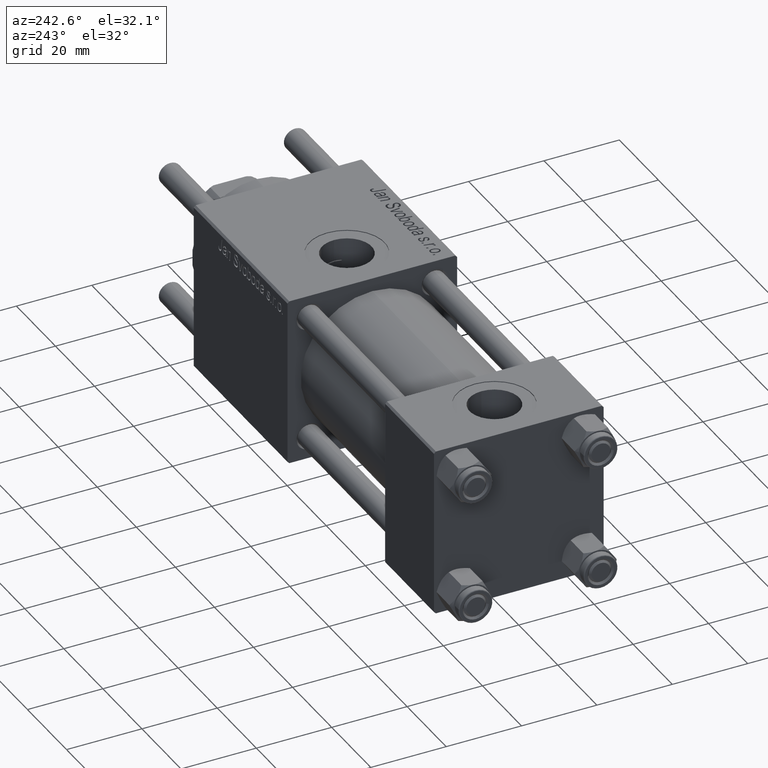
[diagram: clean part render]
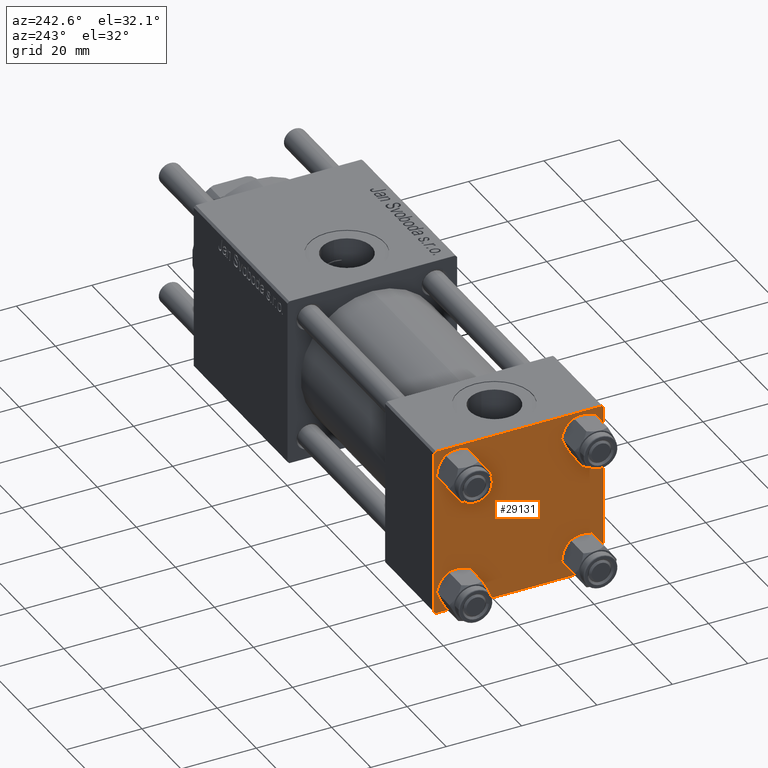
[diagram: same view with one face highlighted and labeled with its STEP entity id]
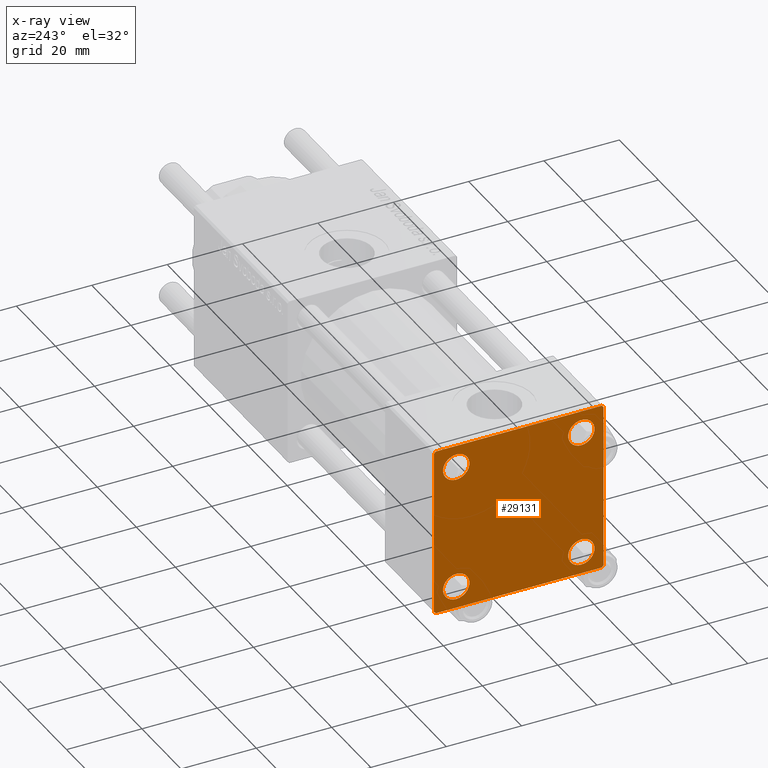
[diagram: x-ray of the same camera — body ghosted, the highlighted face saturated]
A machine part, auxiliary view. The second image highlights one B-rep face of the part: STEP entity #29131.
The next image is the same camera in x-ray: the body ghosted, the highlighted face saturated — about 0% of this face is hidden behind the body in this view.
In plain terms, the highlighted planar face has unit normal (-1, 0, 0).
Its self-contained STEP definition (entity closure, byte-faithful):
#793 = CIRCLE ( 'NONE', #39563, 3.499999999999996003 ) ;
#1063 = EDGE_CURVE ( 'NONE', #5606, #55957, #28718, .T. ) ;
#1360 = DIRECTION ( 'NONE',  ( 0.000000000000000000, 0.000000000000000000, 1.000000000000000000 ) ) ;
#1800 = EDGE_CURVE ( 'NONE', #24311, #23880, #51792, .T. ) ;
#1951 = DIRECTION ( 'NONE',  ( 1.000000000000000000, -0.000000000000000000, 0.000000000000000000 ) ) ;
#2198 = CARTESIAN_POINT ( 'NONE',  ( 0.000000000000000000, 22.25000000000014566, -22.24999999999984013 ) ) ;
#2492 = LINE ( 'NONE', #2198, #48736 ) ;
#2779 = CARTESIAN_POINT ( 'NONE',  ( 0.000000000000000000, -22.25000000000014566, -22.24999999999984013 ) ) ;
#5606 = VERTEX_POINT ( 'NONE', #34546 ) ;
#5712 = CIRCLE ( 'NONE', #42578, 3.499999999999996003 ) ;
#5910 = EDGE_CURVE ( 'NONE', #19520, #19886, #52178, .T. ) ;
#6015 = VERTEX_POINT ( 'NONE', #32355 ) ;
#6250 = CARTESIAN_POINT ( 'NONE',  ( 0.000000000000000000, 22.50000000000000000, 22.50000000000000355 ) ) ;
#6289 = FACE_BOUND ( 'NONE', #17034, .T. ) ;
#6531 = DIRECTION ( 'NONE',  ( 0.000000000000000000, 0.000000000000000000, 1.000000000000000000 ) ) ;
#6576 = CARTESIAN_POINT ( 'NONE',  ( 0.000000000000000000, 0.000000000000000000, 0.000000000000000000 ) ) ;
#7406 = DIRECTION ( 'NONE',  ( 0.000000000000000000, 0.000000000000000000, -1.000000000000000000 ) ) ;
#7966 = CIRCLE ( 'NONE', #24039, 3.499999999999996003 ) ;
#8859 = ORIENTED_EDGE ( 'NONE', *, *, #10737, .T. ) ;
#9222 = ORIENTED_EDGE ( 'NONE', *, *, #45767, .T. ) ;
#9439 = EDGE_CURVE ( 'NONE', #5606, #23880, #23898, .T. ) ;
#9713 = DIRECTION ( 'NONE',  ( 1.000000000000000000, -0.000000000000000000, 0.000000000000000000 ) ) ;
#10194 = EDGE_CURVE ( 'NONE', #57962, #21688, #18291, .T. ) ;
#10421 = DIRECTION ( 'NONE',  ( 0.000000000000000000, 0.000000000000000000, 1.000000000000000000 ) ) ;
#10737 = EDGE_CURVE ( 'NONE', #15828, #55957, #43326, .T. ) ;
#11308 = FACE_BOUND ( 'NONE', #28984, .T. ) ;
#12845 = ORIENTED_EDGE ( 'NONE', *, *, #1063, .F. ) ;
#13369 = DIRECTION ( 'NONE',  ( 0.000000000000000000, 0.7071067811865474617, -0.7071067811865474617 ) ) ;
#13751 = EDGE_LOOP ( 'NONE', ( #25037, #22432 ) ) ;
#15828 = VERTEX_POINT ( 'NONE', #41357 ) ;
#16048 = FACE_BOUND ( 'NONE', #41413, .T. ) ;
#16230 = VECTOR ( 'NONE', #29888, 1000.000000000000000 ) ;
#16279 = DIRECTION ( 'NONE',  ( 0.000000000000000000, 0.000000000000000000, 1.000000000000000000 ) ) ;
#16560 = DIRECTION ( 'NONE',  ( 0.000000000000000000, -1.000000000000000000, -7.709882115452476934E-17 ) ) ;
#16740 = EDGE_CURVE ( 'NONE', #31510, #30766, #2492, .T. ) ;
#17034 = EDGE_LOOP ( 'NONE', ( #27807, #30863 ) ) ;
#17839 = VECTOR ( 'NONE', #42835, 1000.000000000000000 ) ;
#18291 = CIRCLE ( 'NONE', #22100, 3.499999999999996003 ) ;
#18551 = VERTEX_POINT ( 'NONE', #52492 ) ;
#18576 = DIRECTION ( 'NONE',  ( -0.000000000000000000, 0.7071067811865525687, 0.7071067811865425767 ) ) ;
#19280 = CARTESIAN_POINT ( 'NONE',  ( 0.000000000000000000, 16.59999999999999787, -16.60000000000000497 ) ) ;
#19520 = VERTEX_POINT ( 'NONE', #40139 ) ;
#19567 = EDGE_LOOP ( 'NONE', ( #35598, #43225, #9222, #8859, #12845, #32644, #27799, #56409 ) ) ;
#19886 = VERTEX_POINT ( 'NONE', #26652 ) ;
#19896 = DIRECTION ( 'NONE',  ( 1.000000000000000000, -0.000000000000000000, 0.000000000000000000 ) ) ;
#20152 = VECTOR ( 'NONE', #18576, 999.9999999999998863 ) ;
#20940 = AXIS2_PLACEMENT_3D ( 'NONE', #33063, #1951, #1360 ) ;
#21473 = EDGE_CURVE ( 'NONE', #19886, #19520, #41965, .T. ) ;
#21688 = VERTEX_POINT ( 'NONE', #52622 ) ;
#22100 = AXIS2_PLACEMENT_3D ( 'NONE', #30458, #43178, #34027 ) ;
#22432 = ORIENTED_EDGE ( 'NONE', *, *, #57541, .T. ) ;
#22475 = EDGE_CURVE ( 'NONE', #52407, #18551, #7966, .T. ) ;
#22698 = VECTOR ( 'NONE', #7406, 1000.000000000000000 ) ;
#23717 = EDGE_CURVE ( 'NONE', #6015, #27017, #25980, .T. ) ;
#23880 = VERTEX_POINT ( 'NONE', #50276 ) ;
#23898 = LINE ( 'NONE', #33375, #20152 ) ;
#24039 = AXIS2_PLACEMENT_3D ( 'NONE', #19280, #47091, #6531 ) ;
#24311 = VERTEX_POINT ( 'NONE', #34508 ) ;
#24784 = CARTESIAN_POINT ( 'NONE',  ( 0.000000000000000000, 22.50000000000000000, -22.49999999999999645 ) ) ;
#24935 = DIRECTION ( 'NONE',  ( -0.000000000000000000, 0.000000000000000000, 1.000000000000000000 ) ) ;
#24990 = DIRECTION ( 'NONE',  ( 0.000000000000000000, -0.7071067811865426878, 0.7071067811865524577 ) ) ;
#25019 = AXIS2_PLACEMENT_3D ( 'NONE', #48536, #57408, #16279 ) ;
#25037 = ORIENTED_EDGE ( 'NONE', *, *, #23717, .T. ) ;
#25980 = CIRCLE ( 'NONE', #25019, 3.499999999999996003 ) ;
#26652 = CARTESIAN_POINT ( 'NONE',  ( 0.000000000000000000, -16.59999999999999076, -20.10000000000000497 ) ) ;
#27017 = VERTEX_POINT ( 'NONE', #34494 ) ;
#27799 = ORIENTED_EDGE ( 'NONE', *, *, #1800, .F. ) ;
#27807 = ORIENTED_EDGE ( 'NONE', *, *, #53293, .T. ) ;
#28461 = CARTESIAN_POINT ( 'NONE',  ( 0.000000000000000000, 22.50000000000000000, -21.99999999999996803 ) ) ;
#28718 = LINE ( 'NONE', #38484, #16230 ) ;
#28984 = EDGE_LOOP ( 'NONE', ( #41967, #32685 ) ) ;
#29131 = ADVANCED_FACE ( 'NONE', ( #33251, #11308, #6289, #16048, #42693 ), #42409, .T. ) ;
#29379 = DIRECTION ( 'NONE',  ( -1.000000000000000000, 0.000000000000000000, -0.000000000000000000 ) ) ;
#29555 = VECTOR ( 'NONE', #16560, 1000.000000000000000 ) ;
#29672 = VECTOR ( 'NONE', #24990, 1000.000000000000000 ) ;
#29888 = DIRECTION ( 'NONE',  ( 0.000000000000000000, 0.000000000000000000, -1.000000000000000000 ) ) ;
#30458 = CARTESIAN_POINT ( 'NONE',  ( 0.000000000000000000, 16.59999999999999787, 16.60000000000000497 ) ) ;
#30766 = VERTEX_POINT ( 'NONE', #39017 ) ;
#30863 = ORIENTED_EDGE ( 'NONE', *, *, #22475, .T. ) ;
#31460 = CARTESIAN_POINT ( 'NONE',  ( 0.000000000000000000, 22.24999999999999645, 22.24999999999999645 ) ) ;
#31510 = VERTEX_POINT ( 'NONE', #28461 ) ;
#31541 = DIRECTION ( 'NONE',  ( 0.000000000000000000, 0.000000000000000000, 1.000000000000000000 ) ) ;
#32355 = CARTESIAN_POINT ( 'NONE',  ( 0.000000000000000000, -16.59999999999999076, 20.10000000000000853 ) ) ;
#32417 = DIRECTION ( 'NONE',  ( 1.000000000000000000, -0.000000000000000000, 0.000000000000000000 ) ) ;
#32644 = ORIENTED_EDGE ( 'NONE', *, *, #9439, .T. ) ;
#32654 = CARTESIAN_POINT ( 'NONE',  ( 0.000000000000000000, -16.59999999999999076, 16.60000000000000853 ) ) ;
#32685 = ORIENTED_EDGE ( 'NONE', *, *, #21473, .T. ) ;
#33063 = CARTESIAN_POINT ( 'NONE',  ( 0.000000000000000000, 16.59999999999999787, -16.60000000000000497 ) ) ;
#33251 = FACE_BOUND ( 'NONE', #13751, .T. ) ;
#33375 = CARTESIAN_POINT ( 'NONE',  ( -0.000000000000000000, -22.24999999999984013, 22.25000000000015277 ) ) ;
#34027 = DIRECTION ( 'NONE',  ( 0.000000000000000000, 0.000000000000000000, 1.000000000000000000 ) ) ;
#34493 = AXIS2_PLACEMENT_3D ( 'NONE', #6576, #29379, #24935 ) ;
#34494 = CARTESIAN_POINT ( 'NONE',  ( 0.000000000000000000, -16.59999999999999076, 13.10000000000001030 ) ) ;
#34508 = CARTESIAN_POINT ( 'NONE',  ( 0.000000000000000000, 21.99999999999999289, 22.50000000000000355 ) ) ;
#34546 = CARTESIAN_POINT ( 'NONE',  ( 0.000000000000000000, -22.50000000000000000, 22.00000000000000000 ) ) ;
#35598 = ORIENTED_EDGE ( 'NONE', *, *, #49701, .T. ) ;
#37160 = CARTESIAN_POINT ( 'NONE',  ( 0.000000000000000000, 16.59999999999999787, 16.60000000000000497 ) ) ;
#37768 = DIRECTION ( 'NONE',  ( -0.000000000000000000, -0.7071067811865426878, -0.7071067811865524577 ) ) ;
#38461 = CARTESIAN_POINT ( 'NONE',  ( 0.000000000000000000, 22.50000000000000000, 21.99999999999999645 ) ) ;
#38484 = CARTESIAN_POINT ( 'NONE',  ( 0.000000000000000000, -22.50000000000000000, 22.50000000000000000 ) ) ;
#38492 = CARTESIAN_POINT ( 'NONE',  ( 0.000000000000000000, 22.50000000000000000, 22.50000000000000355 ) ) ;
#39017 = CARTESIAN_POINT ( 'NONE',  ( 0.000000000000000000, 21.99999999999999289, -22.49999999999999645 ) ) ;
#39563 = AXIS2_PLACEMENT_3D ( 'NONE', #32654, #19896, #10421 ) ;
#39911 = AXIS2_PLACEMENT_3D ( 'NONE', #40355, #40071, #44790 ) ;
#40071 = DIRECTION ( 'NONE',  ( 1.000000000000000000, -0.000000000000000000, 0.000000000000000000 ) ) ;
#40139 = CARTESIAN_POINT ( 'NONE',  ( 0.000000000000000000, -16.59999999999999076, -13.10000000000001030 ) ) ;
#40355 = CARTESIAN_POINT ( 'NONE',  ( 0.000000000000000000, -16.59999999999999076, -16.60000000000000853 ) ) ;
#41357 = CARTESIAN_POINT ( 'NONE',  ( 0.000000000000000000, -21.99999999999997158, -22.50000000000000711 ) ) ;
#41413 = EDGE_LOOP ( 'NONE', ( #55094, #43085 ) ) ;
#41699 = DIRECTION ( 'NONE',  ( 0.000000000000000000, 0.000000000000000000, 1.000000000000000000 ) ) ;
#41965 = CIRCLE ( 'NONE', #54231, 3.499999999999996003 ) ;
#41967 = ORIENTED_EDGE ( 'NONE', *, *, #5910, .T. ) ;
#42297 = VERTEX_POINT ( 'NONE', #38461 ) ;
#42409 = PLANE ( 'NONE',  #34493 ) ;
#42578 = AXIS2_PLACEMENT_3D ( 'NONE', #37160, #32417, #31541 ) ;
#42693 = FACE_OUTER_BOUND ( 'NONE', #19567, .T. ) ;
#42835 = DIRECTION ( 'NONE',  ( 0.000000000000000000, -1.000000000000000000, -2.312964634635742957E-16 ) ) ;
#43085 = ORIENTED_EDGE ( 'NONE', *, *, #10194, .T. ) ;
#43178 = DIRECTION ( 'NONE',  ( 1.000000000000000000, -0.000000000000000000, 0.000000000000000000 ) ) ;
#43225 = ORIENTED_EDGE ( 'NONE', *, *, #16740, .T. ) ;
#43326 = LINE ( 'NONE', #2779, #29672 ) ;
#43525 = LINE ( 'NONE', #6250, #22698 ) ;
#43891 = CARTESIAN_POINT ( 'NONE',  ( 0.000000000000000000, -22.50000000000000000, -21.99999999999997158 ) ) ;
#44790 = DIRECTION ( 'NONE',  ( 0.000000000000000000, 0.000000000000000000, 1.000000000000000000 ) ) ;
#45767 = EDGE_CURVE ( 'NONE', #30766, #15828, #47286, .T. ) ;
#46456 = CIRCLE ( 'NONE', #20940, 3.499999999999996003 ) ;
#47091 = DIRECTION ( 'NONE',  ( 1.000000000000000000, -0.000000000000000000, 0.000000000000000000 ) ) ;
#47286 = LINE ( 'NONE', #24784, #17839 ) ;
#48536 = CARTESIAN_POINT ( 'NONE',  ( 0.000000000000000000, -16.59999999999999076, 16.60000000000000853 ) ) ;
#48736 = VECTOR ( 'NONE', #37768, 1000.000000000000000 ) ;
#49701 = EDGE_CURVE ( 'NONE', #42297, #31510, #43525, .T. ) ;
#50276 = CARTESIAN_POINT ( 'NONE',  ( 0.000000000000000000, -21.99999999999997868, 22.50000000000000000 ) ) ;
#50580 = CARTESIAN_POINT ( 'NONE',  ( 0.000000000000000000, -16.59999999999999076, -16.60000000000000853 ) ) ;
#50588 = EDGE_CURVE ( 'NONE', #21688, #57962, #5712, .T. ) ;
#51750 = VECTOR ( 'NONE', #13369, 1000.000000000000114 ) ;
#51792 = LINE ( 'NONE', #38492, #29555 ) ;
#52178 = CIRCLE ( 'NONE', #39911, 3.499999999999996003 ) ;
#52407 = VERTEX_POINT ( 'NONE', #58190 ) ;
#52492 = CARTESIAN_POINT ( 'NONE',  ( 0.000000000000000000, 16.59999999999999787, -13.10000000000000675 ) ) ;
#52622 = CARTESIAN_POINT ( 'NONE',  ( 0.000000000000000000, 16.59999999999999787, 20.10000000000000142 ) ) ;
#53293 = EDGE_CURVE ( 'NONE', #18551, #52407, #46456, .T. ) ;
#53932 = LINE ( 'NONE', #31460, #51750 ) ;
#54231 = AXIS2_PLACEMENT_3D ( 'NONE', #50580, #9713, #41699 ) ;
#55094 = ORIENTED_EDGE ( 'NONE', *, *, #50588, .T. ) ;
#55921 = EDGE_CURVE ( 'NONE', #24311, #42297, #53932, .T. ) ;
#55957 = VERTEX_POINT ( 'NONE', #43891 ) ;
#56409 = ORIENTED_EDGE ( 'NONE', *, *, #55921, .T. ) ;
#57408 = DIRECTION ( 'NONE',  ( 1.000000000000000000, -0.000000000000000000, 0.000000000000000000 ) ) ;
#57541 = EDGE_CURVE ( 'NONE', #27017, #6015, #793, .T. ) ;
#57962 = VERTEX_POINT ( 'NONE', #58155 ) ;
#58155 = CARTESIAN_POINT ( 'NONE',  ( 0.000000000000000000, 16.59999999999999787, 13.10000000000000675 ) ) ;
#58190 = CARTESIAN_POINT ( 'NONE',  ( 0.000000000000000000, 16.59999999999999787, -20.10000000000000142 ) ) ;